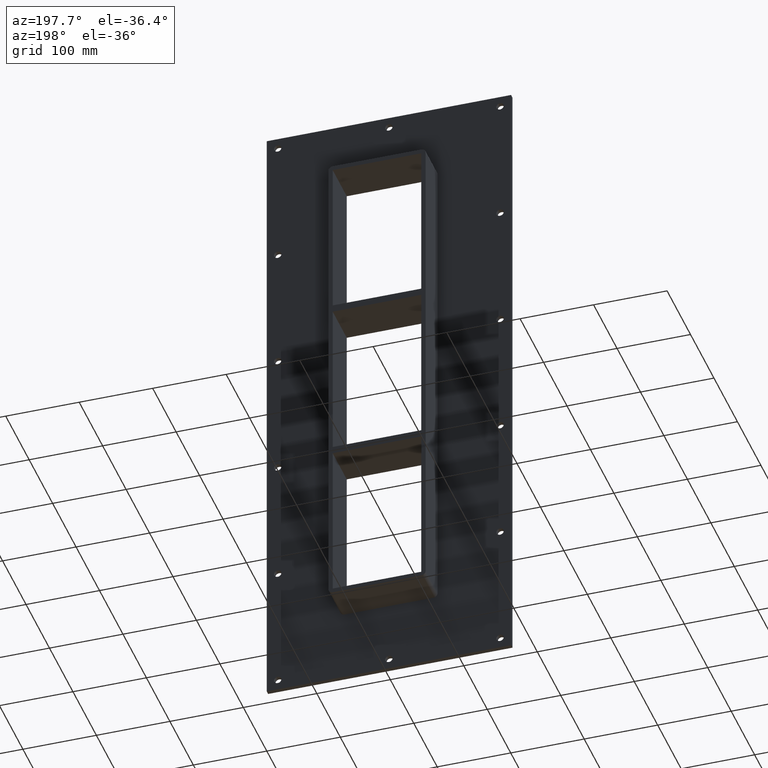
[diagram: clean part render]
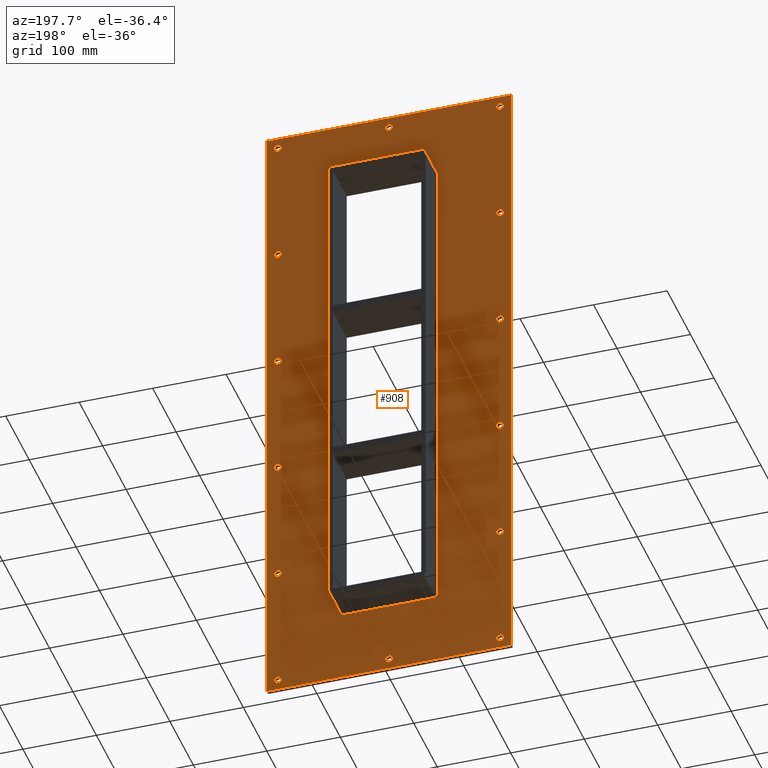
[diagram: same view with one face highlighted and labeled with its STEP entity id]
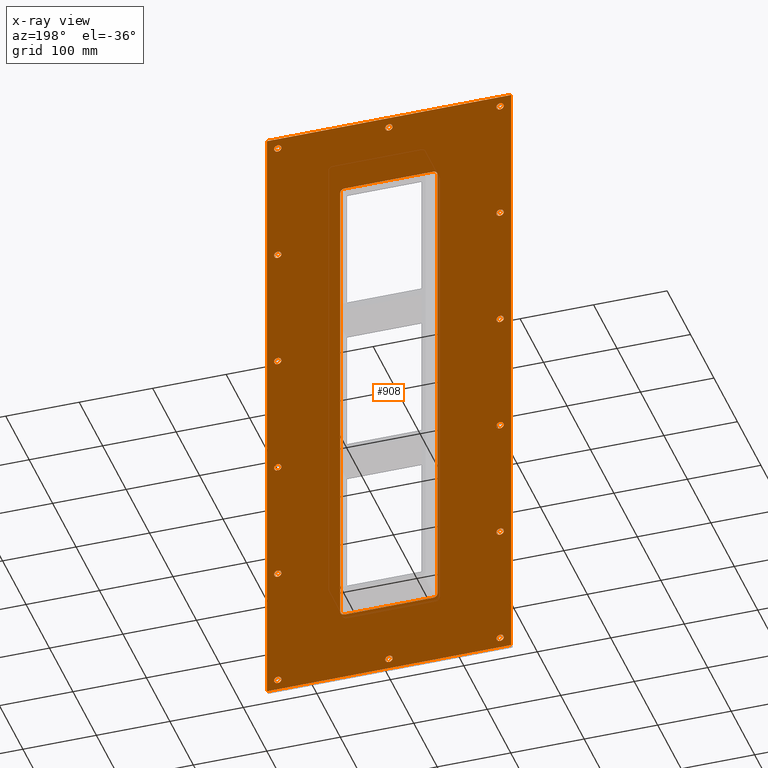
[diagram: x-ray of the same camera — body ghosted, the highlighted face saturated]
A machine part, auxiliary view. The second image highlights one B-rep face of the part: STEP entity #908.
The next image is the same camera in x-ray: the body ghosted, the highlighted face saturated — about 0% of this face is hidden behind the body in this view.
In plain terms, the highlighted planar face has unit normal (0, 1, 0).
Its self-contained STEP definition (entity closure, byte-faithful):
#73=CARTESIAN_POINT('',(-156.25000000000006,5.999999999999943,-428.0));
#74=VERTEX_POINT('',#73);
#75=CARTESIAN_POINT('',(-151.25000000000006,5.999999999999943,-428.0));
#76=DIRECTION('',(0.0,-1.0,0.0));
#77=DIRECTION('',(1.0,0.0,0.0));
#78=AXIS2_PLACEMENT_3D('',#75,#76,#77);
#79=CIRCLE('',#78,5.0);
#80=EDGE_CURVE('',#74,#74,#79,.T.);
#101=CARTESIAN_POINT('',(146.34999999999997,5.999999999999943,-256.7999999999999));
#102=VERTEX_POINT('',#101);
#103=CARTESIAN_POINT('',(151.34999999999997,5.999999999999943,-256.7999999999999));
#104=DIRECTION('',(0.0,-1.0,0.0));
#105=DIRECTION('',(1.0,0.0,0.0));
#106=AXIS2_PLACEMENT_3D('',#103,#104,#105);
#107=CIRCLE('',#106,5.0);
#108=EDGE_CURVE('',#102,#102,#107,.T.);
#129=CARTESIAN_POINT('',(-156.25000000000006,5.999999999999943,-256.7999999999999));
#130=VERTEX_POINT('',#129);
#131=CARTESIAN_POINT('',(-151.25000000000006,5.999999999999943,-256.7999999999999));
#132=DIRECTION('',(0.0,-1.0,0.0));
#133=DIRECTION('',(1.0,0.0,0.0));
#134=AXIS2_PLACEMENT_3D('',#131,#132,#133);
#135=CIRCLE('',#134,5.0);
#136=EDGE_CURVE('',#130,#130,#135,.T.);
#157=CARTESIAN_POINT('',(146.34999999999997,5.999999999999943,-85.599999999999852));
#158=VERTEX_POINT('',#157);
#159=CARTESIAN_POINT('',(151.34999999999997,5.999999999999943,-85.599999999999852));
#160=DIRECTION('',(0.0,-1.0,0.0));
#161=DIRECTION('',(1.0,0.0,0.0));
#162=AXIS2_PLACEMENT_3D('',#159,#160,#161);
#163=CIRCLE('',#162,5.0);
#164=EDGE_CURVE('',#158,#158,#163,.T.);
#185=CARTESIAN_POINT('',(-156.25000000000006,5.999999999999943,-85.599999999999852));
#186=VERTEX_POINT('',#185);
#187=CARTESIAN_POINT('',(-151.25000000000006,5.999999999999943,-85.599999999999852));
#188=DIRECTION('',(0.0,-1.0,0.0));
#189=DIRECTION('',(1.0,0.0,0.0));
#190=AXIS2_PLACEMENT_3D('',#187,#188,#189);
#191=CIRCLE('',#190,5.0);
#192=EDGE_CURVE('',#186,#186,#191,.T.);
#213=CARTESIAN_POINT('',(146.34999999999997,5.999999999999943,85.600000000000094));
#214=VERTEX_POINT('',#213);
#215=CARTESIAN_POINT('',(151.34999999999997,5.999999999999943,85.600000000000094));
#216=DIRECTION('',(0.0,-1.0,0.0));
#217=DIRECTION('',(1.0,0.0,0.0));
#218=AXIS2_PLACEMENT_3D('',#215,#216,#217);
#219=CIRCLE('',#218,5.0);
#220=EDGE_CURVE('',#214,#214,#219,.T.);
#241=CARTESIAN_POINT('',(-156.25000000000006,5.999999999999943,85.600000000000094));
#242=VERTEX_POINT('',#241);
#243=CARTESIAN_POINT('',(-151.25000000000006,5.999999999999943,85.600000000000094));
#244=DIRECTION('',(0.0,-1.0,0.0));
#245=DIRECTION('',(1.0,0.0,0.0));
#246=AXIS2_PLACEMENT_3D('',#243,#244,#245);
#247=CIRCLE('',#246,5.0);
#248=EDGE_CURVE('',#242,#242,#247,.T.);
#269=CARTESIAN_POINT('',(146.34999999999997,5.999999999999943,256.80000000000013));
#270=VERTEX_POINT('',#269);
#271=CARTESIAN_POINT('',(151.34999999999997,5.999999999999943,256.80000000000013));
#272=DIRECTION('',(0.0,-1.0,0.0));
#273=DIRECTION('',(1.0,0.0,0.0));
#274=AXIS2_PLACEMENT_3D('',#271,#272,#273);
#275=CIRCLE('',#274,5.0);
#276=EDGE_CURVE('',#270,#270,#275,.T.);
#297=CARTESIAN_POINT('',(-156.25000000000006,5.999999999999943,256.80000000000013));
#298=VERTEX_POINT('',#297);
#299=CARTESIAN_POINT('',(-151.25000000000006,5.999999999999943,256.80000000000013));
#300=DIRECTION('',(0.0,-1.0,0.0));
#301=DIRECTION('',(1.0,0.0,0.0));
#302=AXIS2_PLACEMENT_3D('',#299,#300,#301);
#303=CIRCLE('',#302,5.0);
#304=EDGE_CURVE('',#298,#298,#303,.T.);
#325=CARTESIAN_POINT('',(-4.950000000000046,5.999999999999943,428.00000000000011));
#326=VERTEX_POINT('',#325);
#327=CARTESIAN_POINT('',(0.049999999999955,5.999999999999943,428.00000000000011));
#328=DIRECTION('',(0.0,-1.0,0.0));
#329=DIRECTION('',(1.0,0.0,0.0));
#330=AXIS2_PLACEMENT_3D('',#327,#328,#329);
#331=CIRCLE('',#330,5.0);
#332=EDGE_CURVE('',#326,#326,#331,.T.);
#353=CARTESIAN_POINT('',(-4.950000000000046,5.999999999999943,-428.0));
#354=VERTEX_POINT('',#353);
#355=CARTESIAN_POINT('',(0.049999999999955,5.999999999999943,-428.0));
#356=DIRECTION('',(0.0,-1.0,0.0));
#357=DIRECTION('',(1.0,0.0,0.0));
#358=AXIS2_PLACEMENT_3D('',#355,#356,#357);
#359=CIRCLE('',#358,5.0);
#360=EDGE_CURVE('',#354,#354,#359,.T.);
#381=CARTESIAN_POINT('',(146.34999999999997,5.999999999999943,-428.0));
#382=VERTEX_POINT('',#381);
#383=CARTESIAN_POINT('',(151.34999999999997,5.999999999999943,-428.0));
#384=DIRECTION('',(0.0,-1.0,0.0));
#385=DIRECTION('',(1.0,0.0,0.0));
#386=AXIS2_PLACEMENT_3D('',#383,#384,#385);
#387=CIRCLE('',#386,5.0);
#388=EDGE_CURVE('',#382,#382,#387,.T.);
#409=CARTESIAN_POINT('',(-156.25000000000006,5.999999999999943,428.00000000000011));
#410=VERTEX_POINT('',#409);
#411=CARTESIAN_POINT('',(-151.25000000000006,5.999999999999943,428.00000000000011));
#412=DIRECTION('',(0.0,-1.0,0.0));
#413=DIRECTION('',(1.0,0.0,0.0));
#414=AXIS2_PLACEMENT_3D('',#411,#412,#413);
#415=CIRCLE('',#414,5.0);
#416=EDGE_CURVE('',#410,#410,#415,.T.);
#437=CARTESIAN_POINT('',(146.34999999999997,5.999999999999943,428.00000000000011));
#438=VERTEX_POINT('',#437);
#439=CARTESIAN_POINT('',(151.34999999999997,5.999999999999943,428.00000000000011));
#440=DIRECTION('',(0.0,-1.0,0.0));
#441=DIRECTION('',(1.0,0.0,0.0));
#442=AXIS2_PLACEMENT_3D('',#439,#440,#441);
#443=CIRCLE('',#442,5.0);
#444=EDGE_CURVE('',#438,#438,#443,.T.);
#757=CARTESIAN_POINT('',(0.0,6.000000000000001,4.198529E-014));
#758=DIRECTION('',(0.0,1.0,0.0));
#759=DIRECTION('',(0.0,0.0,1.0));
#760=AXIS2_PLACEMENT_3D('',#757,#758,#759);
#761=PLANE('',#760);
#762=CARTESIAN_POINT('',(-166.25,6.000000000000001,443.00000000000006));
#763=VERTEX_POINT('',#762);
#764=CARTESIAN_POINT('',(166.25,6.000000000000001,443.00000000000006));
#765=VERTEX_POINT('',#764);
#766=CARTESIAN_POINT('',(-166.25,6.000000000000001,443.00000000000006));
#767=DIRECTION('',(1.0,0.0,0.0));
#768=VECTOR('',#767,332.5);
#769=LINE('',#766,#768);
#770=EDGE_CURVE('',#763,#765,#769,.T.);
#771=ORIENTED_EDGE('',*,*,#770,.T.);
#772=CARTESIAN_POINT('',(166.25,6.000000000000001,-442.99999999999989));
#773=VERTEX_POINT('',#772);
#774=CARTESIAN_POINT('',(166.25,6.000000000000001,443.00000000000006));
#775=DIRECTION('',(0.0,0.0,-1.0));
#776=VECTOR('',#775,886.0);
#777=LINE('',#774,#776);
#778=EDGE_CURVE('',#765,#773,#777,.T.);
#779=ORIENTED_EDGE('',*,*,#778,.T.);
#780=CARTESIAN_POINT('',(-166.25,6.000000000000001,-442.99999999999989));
#781=VERTEX_POINT('',#780);
#782=CARTESIAN_POINT('',(166.25,6.000000000000001,-443.0));
#783=DIRECTION('',(-1.0,0.0,0.0));
#784=VECTOR('',#783,332.5);
#785=LINE('',#782,#784);
#786=EDGE_CURVE('',#773,#781,#785,.T.);
#787=ORIENTED_EDGE('',*,*,#786,.T.);
#788=CARTESIAN_POINT('',(-166.25,6.000000000000001,-443.0));
#789=DIRECTION('',(0.0,0.0,1.0));
#790=VECTOR('',#789,886.0);
#791=LINE('',#788,#790);
#792=EDGE_CURVE('',#781,#763,#791,.T.);
#793=ORIENTED_EDGE('',*,*,#792,.T.);
#794=EDGE_LOOP('',(#771,#779,#787,#793));
#795=FACE_OUTER_BOUND('',#794,.T.);
#796=ORIENTED_EDGE('',*,*,#80,.T.);
#797=EDGE_LOOP('',(#796));
#798=FACE_BOUND('',#797,.T.);
#799=ORIENTED_EDGE('',*,*,#108,.T.);
#800=EDGE_LOOP('',(#799));
#801=FACE_BOUND('',#800,.T.);
#802=ORIENTED_EDGE('',*,*,#136,.T.);
#803=EDGE_LOOP('',(#802));
#804=FACE_BOUND('',#803,.T.);
#805=ORIENTED_EDGE('',*,*,#164,.T.);
#806=EDGE_LOOP('',(#805));
#807=FACE_BOUND('',#806,.T.);
#808=ORIENTED_EDGE('',*,*,#192,.T.);
#809=EDGE_LOOP('',(#808));
#810=FACE_BOUND('',#809,.T.);
#811=ORIENTED_EDGE('',*,*,#220,.T.);
#812=EDGE_LOOP('',(#811));
#813=FACE_BOUND('',#812,.T.);
#814=ORIENTED_EDGE('',*,*,#248,.T.);
#815=EDGE_LOOP('',(#814));
#816=FACE_BOUND('',#815,.T.);
#817=ORIENTED_EDGE('',*,*,#276,.T.);
#818=EDGE_LOOP('',(#817));
#819=FACE_BOUND('',#818,.T.);
#820=ORIENTED_EDGE('',*,*,#304,.T.);
#821=EDGE_LOOP('',(#820));
#822=FACE_BOUND('',#821,.T.);
#823=ORIENTED_EDGE('',*,*,#332,.T.);
#824=EDGE_LOOP('',(#823));
#825=FACE_BOUND('',#824,.T.);
#826=ORIENTED_EDGE('',*,*,#360,.T.);
#827=EDGE_LOOP('',(#826));
#828=FACE_BOUND('',#827,.T.);
#829=ORIENTED_EDGE('',*,*,#388,.T.);
#830=EDGE_LOOP('',(#829));
#831=FACE_BOUND('',#830,.T.);
#832=ORIENTED_EDGE('',*,*,#416,.T.);
#833=EDGE_LOOP('',(#832));
#834=FACE_BOUND('',#833,.T.);
#835=ORIENTED_EDGE('',*,*,#444,.T.);
#836=EDGE_LOOP('',(#835));
#837=FACE_BOUND('',#836,.T.);
#838=CARTESIAN_POINT('',(-60.25,6.000000000000001,-343.0));
#839=VERTEX_POINT('',#838);
#840=CARTESIAN_POINT('',(-66.25,6.000000000000001,-337.0));
#841=VERTEX_POINT('',#840);
#842=CARTESIAN_POINT('',(-60.25,6.000000000000001,-337.0));
#843=DIRECTION('',(0.0,1.0,0.0));
#844=DIRECTION('',(-0.707106781186551,0.0,-0.707106781186544));
#845=AXIS2_PLACEMENT_3D('',#842,#843,#844);
#846=CIRCLE('',#845,6.0);
#847=EDGE_CURVE('',#839,#841,#846,.T.);
#848=ORIENTED_EDGE('',*,*,#847,.F.);
#849=CARTESIAN_POINT('',(60.25,6.000000000000001,-343.0));
#850=VERTEX_POINT('',#849);
#851=CARTESIAN_POINT('',(60.25,6.000000000000001,-343.0));
#852=DIRECTION('',(-1.0,0.0,0.0));
#853=VECTOR('',#852,120.5);
#854=LINE('',#851,#853);
#855=EDGE_CURVE('',#850,#839,#854,.T.);
#856=ORIENTED_EDGE('',*,*,#855,.F.);
#857=CARTESIAN_POINT('',(66.25,6.000000000000001,-336.99999999999989));
#858=VERTEX_POINT('',#857);
#859=CARTESIAN_POINT('',(60.25,6.000000000000001,-336.99999999999989));
#860=DIRECTION('',(0.0,1.0,0.0));
#861=DIRECTION('',(0.707106781186542,0.0,-0.707106781186553));
#862=AXIS2_PLACEMENT_3D('',#859,#860,#861);
#863=CIRCLE('',#862,6.000000000000001);
#864=EDGE_CURVE('',#858,#850,#863,.T.);
#865=ORIENTED_EDGE('',*,*,#864,.F.);
#866=CARTESIAN_POINT('',(66.25,6.000000000000001,337.00000000000011));
#867=VERTEX_POINT('',#866);
#868=CARTESIAN_POINT('',(66.25,6.000000000000001,337.00000000000011));
#869=DIRECTION('',(0.0,0.0,-1.0));
#870=VECTOR('',#869,674.0);
#871=LINE('',#868,#870);
#872=EDGE_CURVE('',#867,#858,#871,.T.);
#873=ORIENTED_EDGE('',*,*,#872,.F.);
#874=CARTESIAN_POINT('',(60.25,6.000000000000001,343.00000000000011));
#875=VERTEX_POINT('',#874);
#876=CARTESIAN_POINT('',(60.25,6.000000000000001,337.00000000000011));
#877=DIRECTION('',(0.0,1.0,0.0));
#878=DIRECTION('',(0.707106781186542,0.0,0.707106781186553));
#879=AXIS2_PLACEMENT_3D('',#876,#877,#878);
#880=CIRCLE('',#879,6.000000000000001);
#881=EDGE_CURVE('',#875,#867,#880,.T.);
#882=ORIENTED_EDGE('',*,*,#881,.F.);
#883=CARTESIAN_POINT('',(-60.25,6.000000000000001,343.00000000000011));
#884=VERTEX_POINT('',#883);
#885=CARTESIAN_POINT('',(-60.25,6.000000000000001,343.00000000000011));
#886=DIRECTION('',(1.0,0.0,0.0));
#887=VECTOR('',#886,120.5);
#888=LINE('',#885,#887);
#889=EDGE_CURVE('',#884,#875,#888,.T.);
#890=ORIENTED_EDGE('',*,*,#889,.F.);
#891=CARTESIAN_POINT('',(-66.25,6.000000000000001,337.0));
#892=VERTEX_POINT('',#891);
#893=CARTESIAN_POINT('',(-60.25,6.000000000000001,337.0));
#894=DIRECTION('',(0.0,1.0,0.0));
#895=DIRECTION('',(-0.707106781186542,0.0,0.707106781186553));
#896=AXIS2_PLACEMENT_3D('',#893,#894,#895);
#897=CIRCLE('',#896,6.000000000000001);
#898=EDGE_CURVE('',#892,#884,#897,.T.);
#899=ORIENTED_EDGE('',*,*,#898,.F.);
#900=CARTESIAN_POINT('',(-66.25,6.000000000000001,-337.0));
#901=DIRECTION('',(0.0,0.0,1.0));
#902=VECTOR('',#901,674.0);
#903=LINE('',#900,#902);
#904=EDGE_CURVE('',#841,#892,#903,.T.);
#905=ORIENTED_EDGE('',*,*,#904,.F.);
#906=EDGE_LOOP('',(#848,#856,#865,#873,#882,#890,#899,#905));
#907=FACE_BOUND('',#906,.T.);
#908=ADVANCED_FACE('',(#795,#798,#801,#804,#807,#810,#813,#816,#819,#822,#825,#828,#831,#834,#837,#907),#761,.T.);